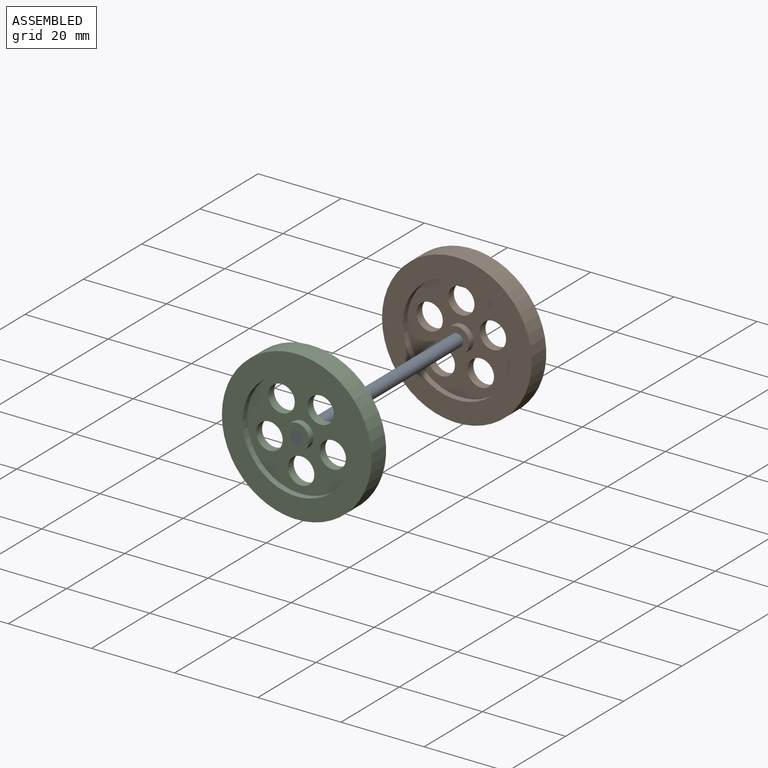
[diagram: assembled view]
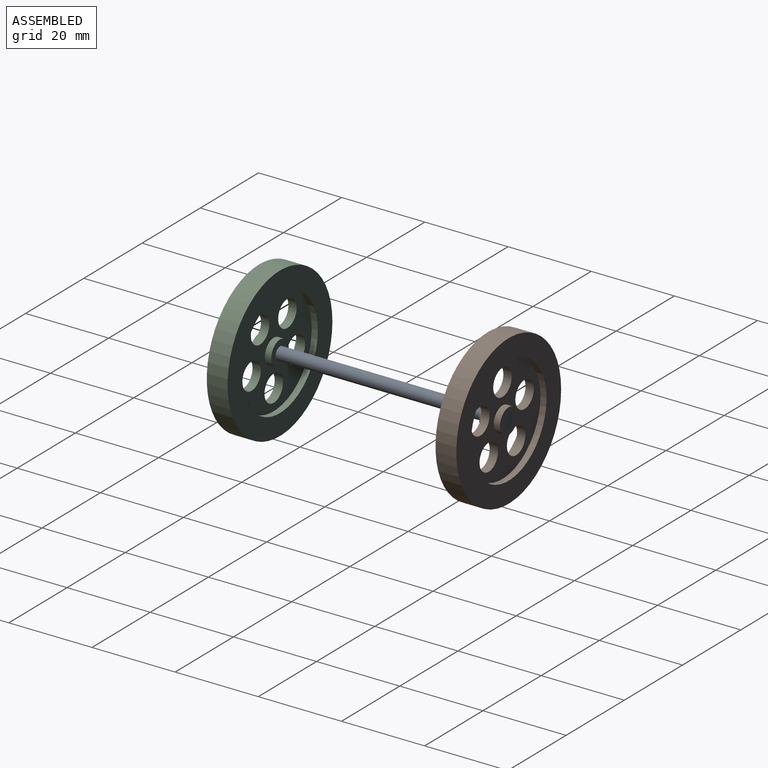
[diagram: assembled view, second angle]
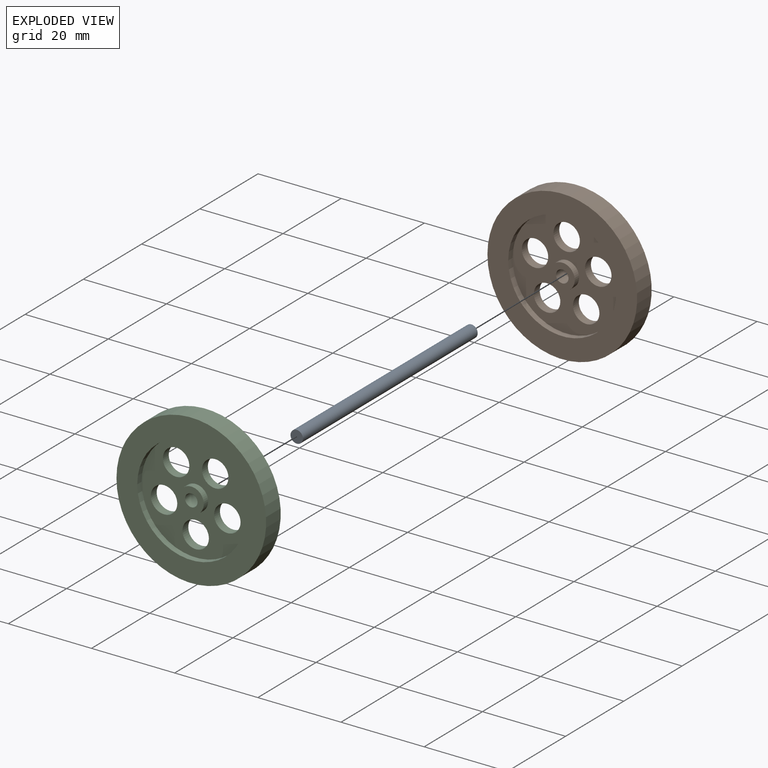
[diagram: exploded view]
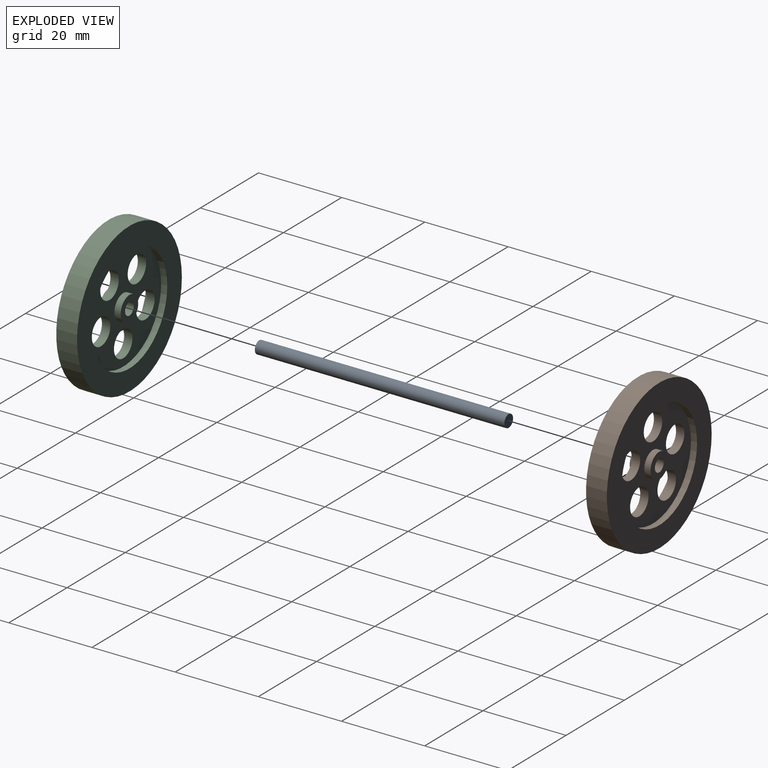
[diagram: exploded view, second angle]
ASSEMBLY  parts=3 mates=2
PART A: 3 faces, bbox 3x60x3 mm
  f0: cylinder r=1.5mm len=60mm, axis (0,1,0), area 565.5mm2, adj f1,f2
  f1: plane 3x3mm, normal (0,-1,0), area 7.1mm2, adj f0
  f2: plane 3x3mm, normal (0,1,0), area 7.1mm2, adj f0
PART B: 17 faces, bbox 36x36x5 mm
  f0: cylinder r=18mm len=36mm, axis (0,0,-1), area 565.5mm2, adj f1,f10
  f1: plane 36x36mm, normal (0,0,1), area 486.9mm2, adj f0,f2
  f2: cylinder r=13mm len=26mm, axis (0,0,-1), area 122.5mm2, adj f1,f3
  f3: plane 26x26mm, normal (0,0,1), area 344.3mm2, adj f2,f4,f12,f13,f14,f15,f16
  f4: cylinder r=3mm len=6mm, axis (0,0,-1), area 28.3mm2, adj f3,f5
  f5: plane 6x6mm, normal (0,0,1), area 21.2mm2, adj f4,f11
  f6: plane 6x6mm, normal (0,0,-1), area 21.2mm2, adj f7,f11
  f7: cylinder r=3mm len=6mm, axis (0,0,-1), area 28.3mm2, adj f6,f8
  f8: plane 26x26mm, normal (0,0,-1), area 344.3mm2, adj f7,f9,f12,f13,f14,f15,f16
  f9: cylinder r=13mm len=26mm, axis (0,0,-1), area 122.5mm2, adj f8,f10
  f10: plane 36x36mm, normal (0,0,-1), area 486.9mm2, adj f0,f9
  f11: cylinder r=1.5mm len=5mm, axis (0,0,-1), area 47.1mm2, adj f5,f6
  f12: cylinder r=3.17mm len=6.35mm, axis (0,0,1), area 39.9mm2, adj f3,f8
  f13: cylinder r=3.17mm len=6.35mm, axis (0,0,1), area 39.9mm2, adj f3,f8
  f14: cylinder r=3.17mm len=6.35mm, axis (0,0,1), area 39.9mm2, adj f3,f8
  f15: cylinder r=3.17mm len=6.35mm, axis (0,0,1), area 39.9mm2, adj f3,f8
  f16: cylinder r=3.17mm len=6.35mm, axis (0,0,1), area 39.9mm2, adj f3,f8
PART C: same geometry as B
PLACE A t=(0.14,0.29,0.32)mm fixed
PLACE B rot(axis=(1,0,0),90deg) t=(0.14,27.79,0.32)mm
PLACE C rot(axis=(-1,0,0),90deg) t=(0.14,-27.21,0.32)mm
MATE fastened A.f0 <-> C.f0  axis (0,-1,0) through (0.14,-29.71,0.32)mm
MATE fastened B.f0 <-> A.f0  axis (0,1,0) through (0.14,30.29,0.32)mm
